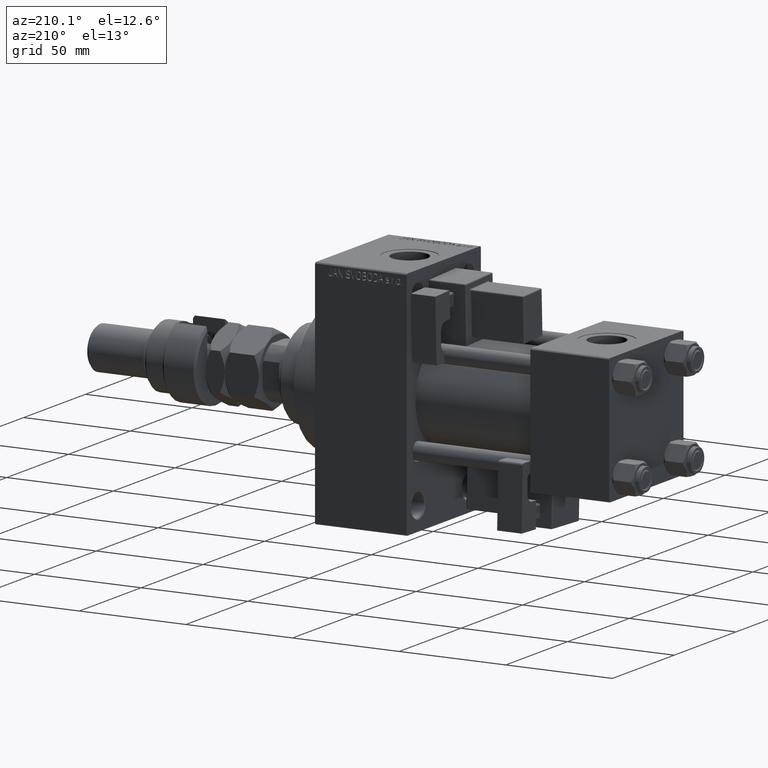
[diagram: clean part render]
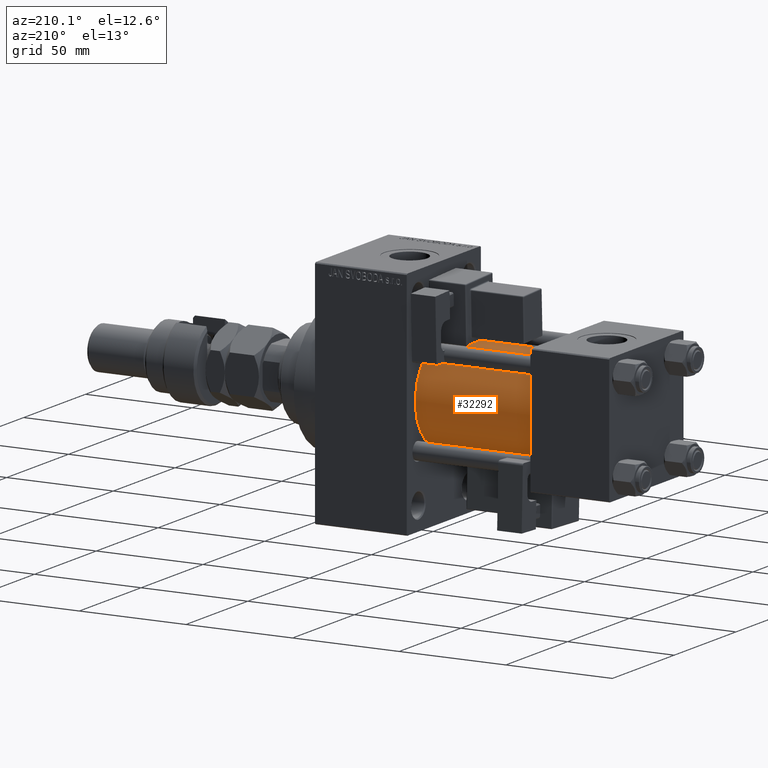
[diagram: same view with one face highlighted and labeled with its STEP entity id]
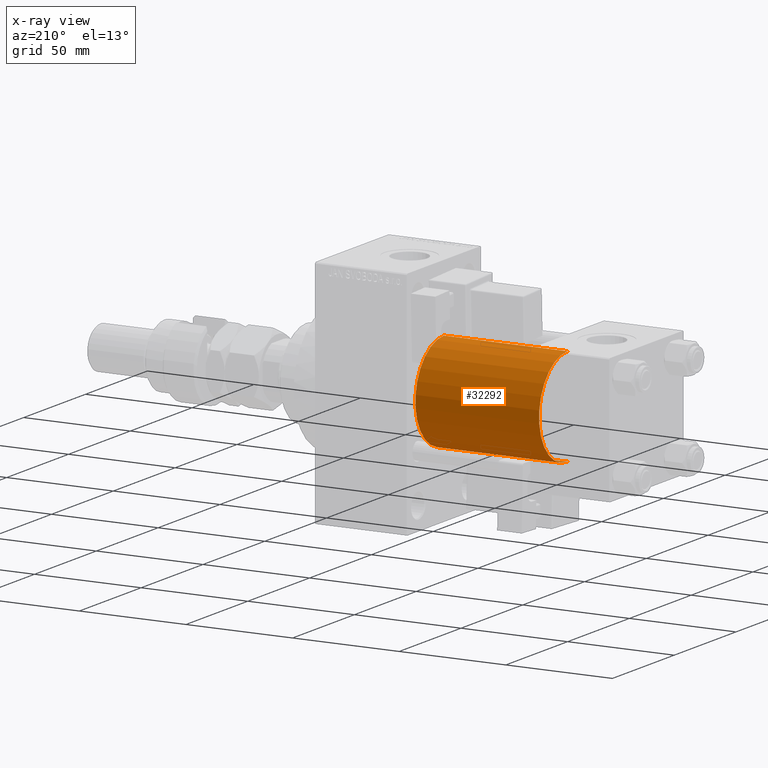
[diagram: x-ray of the same camera — body ghosted, the highlighted face saturated]
A machine part, auxiliary view. The second image highlights one B-rep face of the part: STEP entity #32292.
The next image is the same camera in x-ray: the body ghosted, the highlighted face saturated — about 0% of this face is hidden behind the body in this view.
In plain terms, the highlighted cylindrical surface (partial cylindrical patch) has radius 23 mm, axis along (-1, -0, -0).
Its self-contained STEP definition (entity closure, byte-faithful):
#479 = AXIS2_PLACEMENT_3D ( 'NONE', #29372, #37351, #9476 ) ;
#1066 = VECTOR ( 'NONE', #32590, 1000.000000000000000 ) ;
#4576 = ORIENTED_EDGE ( 'NONE', *, *, #18220, .F. ) ;
#8680 = FACE_OUTER_BOUND ( 'NONE', #52366, .T. ) ;
#9476 = DIRECTION ( 'NONE',  ( 0.000000000000000000, 0.000000000000000000, 1.000000000000000000 ) ) ;
#10703 = EDGE_CURVE ( 'NONE', #29361, #51569, #37041, .T. ) ;
#11088 = DIRECTION ( 'NONE',  ( -1.000000000000000000, -0.000000000000000000, -0.000000000000000000 ) ) ;
#11131 = DIRECTION ( 'NONE',  ( 1.000000000000000000, 0.000000000000000000, 0.000000000000000000 ) ) ;
#12329 = AXIS2_PLACEMENT_3D ( 'NONE', #20182, #15952, #51856 ) ;
#15324 = CARTESIAN_POINT ( 'NONE',  ( 95.00000000000000000, 2.146024240737012665E-16, -23.00000000000000000 ) ) ;
#15952 = DIRECTION ( 'NONE',  ( 1.000000000000000000, -0.000000000000000000, 0.000000000000000000 ) ) ;
#17000 = CARTESIAN_POINT ( 'NONE',  ( 95.00000000000000000, 2.146024240737012665E-16, -23.00000000000000000 ) ) ;
#17809 = AXIS2_PLACEMENT_3D ( 'NONE', #39803, #11131, #23592 ) ;
#18200 = ORIENTED_EDGE ( 'NONE', *, *, #10703, .T. ) ;
#18220 = EDGE_CURVE ( 'NONE', #43944, #31347, #33074, .T. ) ;
#19335 = VECTOR ( 'NONE', #11088, 1000.000000000000000 ) ;
#20182 = CARTESIAN_POINT ( 'NONE',  ( 37.00000000000000000, -2.602085213965210642E-15, 0.000000000000000000 ) ) ;
#22702 = EDGE_CURVE ( 'NONE', #31347, #51569, #28339, .T. ) ;
#23592 = DIRECTION ( 'NONE',  ( 0.000000000000000000, 0.000000000000000000, -1.000000000000000000 ) ) ;
#23803 = LINE ( 'NONE', #15324, #19335 ) ;
#26638 = ORIENTED_EDGE ( 'NONE', *, *, #22702, .F. ) ;
#27821 = CARTESIAN_POINT ( 'NONE',  ( 95.00000000000000000, -2.602085213965210642E-15, 23.00000000000000000 ) ) ;
#28339 = LINE ( 'NONE', #27821, #1066 ) ;
#29361 = VERTEX_POINT ( 'NONE', #41349 ) ;
#29372 = CARTESIAN_POINT ( 'NONE',  ( 95.00000000000000000, -2.602085213965210642E-15, 0.000000000000000000 ) ) ;
#29635 = CYLINDRICAL_SURFACE ( 'NONE', #479, 23.00000000000000000 ) ;
#31347 = VERTEX_POINT ( 'NONE', #35974 ) ;
#32292 = ADVANCED_FACE ( 'NONE', ( #8680 ), #29635, .T. ) ;
#32590 = DIRECTION ( 'NONE',  ( -1.000000000000000000, -0.000000000000000000, -0.000000000000000000 ) ) ;
#33074 = CIRCLE ( 'NONE', #17809, 23.00000000000000000 ) ;
#35974 = CARTESIAN_POINT ( 'NONE',  ( 95.00000000000000000, -2.602085213965210642E-15, 23.00000000000000000 ) ) ;
#37041 = CIRCLE ( 'NONE', #12329, 23.00000000000000000 ) ;
#37351 = DIRECTION ( 'NONE',  ( -1.000000000000000000, -0.000000000000000000, -0.000000000000000000 ) ) ;
#38086 = ORIENTED_EDGE ( 'NONE', *, *, #39835, .T. ) ;
#39803 = CARTESIAN_POINT ( 'NONE',  ( 95.00000000000000000, -2.602085213965210642E-15, 0.000000000000000000 ) ) ;
#39835 = EDGE_CURVE ( 'NONE', #43944, #29361, #23803, .T. ) ;
#41349 = CARTESIAN_POINT ( 'NONE',  ( 37.00000000000000000, 2.146024240737012665E-16, -23.00000000000000000 ) ) ;
#43944 = VERTEX_POINT ( 'NONE', #17000 ) ;
#51100 = CARTESIAN_POINT ( 'NONE',  ( 37.00000000000000000, -2.602085213965210642E-15, 23.00000000000000000 ) ) ;
#51569 = VERTEX_POINT ( 'NONE', #51100 ) ;
#51856 = DIRECTION ( 'NONE',  ( 0.000000000000000000, 0.000000000000000000, 1.000000000000000000 ) ) ;
#52366 = EDGE_LOOP ( 'NONE', ( #4576, #38086, #18200, #26638 ) ) ;